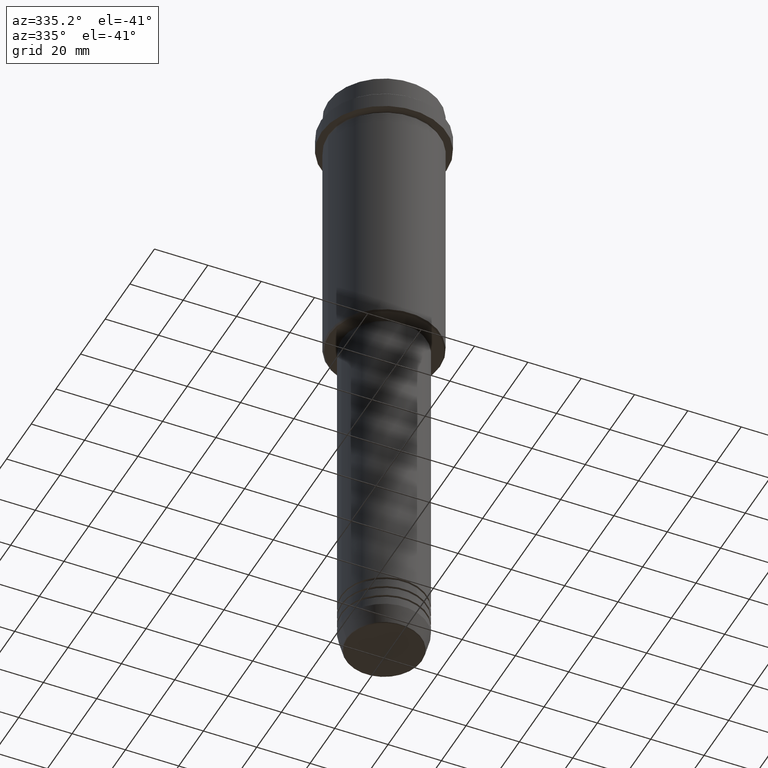
[diagram: clean part render]
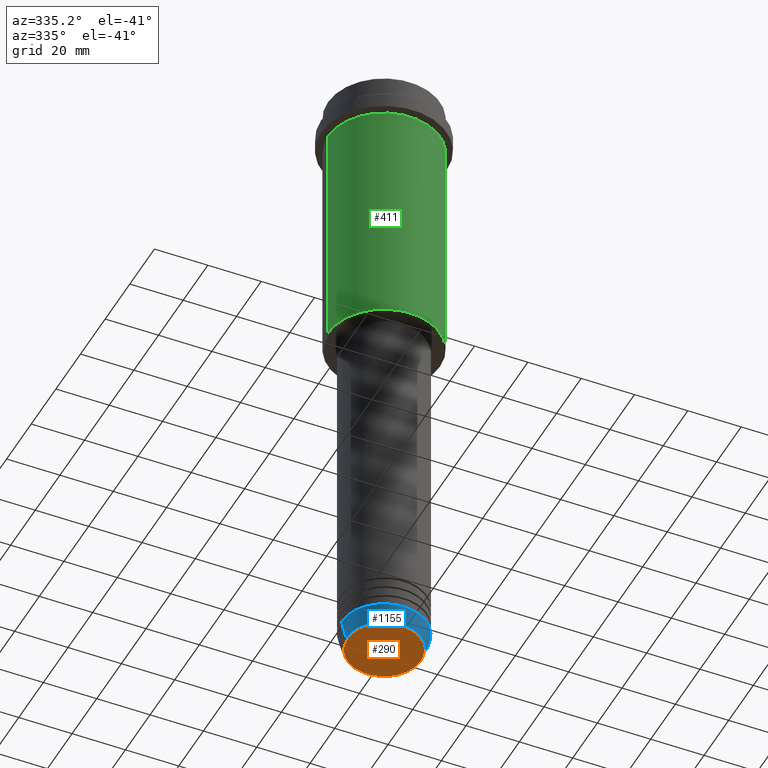
[diagram: same view with three faces highlighted in distinct colors, each labeled with its STEP entity id]
A machine part, auxiliary view with three faces highlighted in distinct colors.
Their STEP definitions:

[orange] entity #290 — the highlighted planar face has unit normal (0, -0, 1).
#95 = CIRCLE ( 'NONE', #1336, 13.74069215899266361 ) ;
#170 = DIRECTION ( 'NONE',  ( 0.000000000000000000, -0.000000000000000000, 1.000000000000000000 ) ) ;
#176 = CARTESIAN_POINT ( 'NONE',  ( 0.000000000000000000, 0.000000000000000000, -240.0000000000000568 ) ) ;
#198 = FACE_OUTER_BOUND ( 'NONE', #885, .T. ) ;
#290 = ADVANCED_FACE ( 'NONE', ( #198 ), #310, .F. ) ;
#296 = AXIS2_PLACEMENT_3D ( 'NONE', #408, #170, #942 ) ;
#310 = PLANE ( 'NONE',  #296 ) ;
#408 = CARTESIAN_POINT ( 'NONE',  ( 0.000000000000000000, 0.000000000000000000, -240.0000000000000568 ) ) ;
#445 = AXIS2_PLACEMENT_3D ( 'NONE', #176, #1138, #1348 ) ;
#510 = CARTESIAN_POINT ( 'NONE',  ( -13.74069215899266361, 1.712322416342416775E-15, -240.0000000000000568 ) ) ;
#599 = ORIENTED_EDGE ( 'NONE', *, *, #1081, .T. ) ;
#636 = CARTESIAN_POINT ( 'NONE',  ( 13.74069215899266361, 0.000000000000000000, -240.0000000000000568 ) ) ;
#684 = ORIENTED_EDGE ( 'NONE', *, *, #1169, .T. ) ;
#707 = VERTEX_POINT ( 'NONE', #510 ) ;
#885 = EDGE_LOOP ( 'NONE', ( #684, #599 ) ) ;
#916 = CARTESIAN_POINT ( 'NONE',  ( 0.000000000000000000, 0.000000000000000000, -240.0000000000000568 ) ) ;
#930 = CIRCLE ( 'NONE', #445, 13.74069215899266361 ) ;
#942 = DIRECTION ( 'NONE',  ( 1.000000000000000000, 0.000000000000000000, 0.000000000000000000 ) ) ;
#988 = DIRECTION ( 'NONE',  ( 1.000000000000000000, 0.000000000000000000, 0.000000000000000000 ) ) ;
#1081 = EDGE_CURVE ( 'NONE', #707, #1255, #930, .T. ) ;
#1138 = DIRECTION ( 'NONE',  ( 0.000000000000000000, 0.000000000000000000, -1.000000000000000000 ) ) ;
#1169 = EDGE_CURVE ( 'NONE', #1255, #707, #95, .T. ) ;
#1255 = VERTEX_POINT ( 'NONE', #636 ) ;
#1336 = AXIS2_PLACEMENT_3D ( 'NONE', #916, #1409, #988 ) ;
#1348 = DIRECTION ( 'NONE',  ( 1.000000000000000000, 0.000000000000000000, 0.000000000000000000 ) ) ;
#1409 = DIRECTION ( 'NONE',  ( 0.000000000000000000, 0.000000000000000000, -1.000000000000000000 ) ) ;

[blue] entity #1155 — the highlighted conical surface has half-angle 15 deg.
#35 = CARTESIAN_POINT ( 'NONE',  ( 0.000000000000000000, 0.000000000000000000, -233.0000000000000284 ) ) ;
#40 = EDGE_CURVE ( 'NONE', #143, #217, #262, .T. ) ;
#60 = DIRECTION ( 'NONE',  ( -0.2588190451025205174, 3.169619151431761243E-17, 0.9659258262890684232 ) ) ;
#96 = AXIS2_PLACEMENT_3D ( 'NONE', #426, #1187, #551 ) ;
#143 = VERTEX_POINT ( 'NONE', #1029 ) ;
#171 = DIRECTION ( 'NONE',  ( -0.000000000000000000, -0.000000000000000000, 1.000000000000000000 ) ) ;
#200 = CARTESIAN_POINT ( 'NONE',  ( -16.00000000000000000, 1.959434878635765131E-15, -233.0000000000000284 ) ) ;
#217 = VERTEX_POINT ( 'NONE', #357 ) ;
#225 = AXIS2_PLACEMENT_3D ( 'NONE', #1393, #957, #419 ) ;
#262 = LINE ( 'NONE', #576, #294 ) ;
#286 = ORIENTED_EDGE ( 'NONE', *, *, #40, .T. ) ;
#294 = VECTOR ( 'NONE', #488, 1000.000000000000114 ) ;
#301 = CIRCLE ( 'NONE', #96, 14.22365507213720548 ) ;
#357 = CARTESIAN_POINT ( 'NONE',  ( 16.00000000000000000, 0.000000000000000000, -233.0000000000000284 ) ) ;
#419 = DIRECTION ( 'NONE',  ( 1.000000000000000000, 0.000000000000000000, 0.000000000000000000 ) ) ;
#426 = CARTESIAN_POINT ( 'NONE',  ( 0.000000000000000000, 0.000000000000000000, -239.6294095225512990 ) ) ;
#436 = CARTESIAN_POINT ( 'NONE',  ( -14.22365507213720548, 1.850665122131324520E-15, -239.6294095225512990 ) ) ;
#484 = DIRECTION ( 'NONE',  ( 1.000000000000000000, 0.000000000000000000, 0.000000000000000000 ) ) ;
#488 = DIRECTION ( 'NONE',  ( 0.2588190451025205174, 0.000000000000000000, 0.9659258262890684232 ) ) ;
#551 = DIRECTION ( 'NONE',  ( 1.000000000000000000, 0.000000000000000000, 0.000000000000000000 ) ) ;
#576 = CARTESIAN_POINT ( 'NONE',  ( 16.00000000000000000, 0.000000000000000000, -233.0000000000000284 ) ) ;
#591 = ORIENTED_EDGE ( 'NONE', *, *, #1253, .T. ) ;
#705 = CARTESIAN_POINT ( 'NONE',  ( -16.00000000000000000, 1.959434878635765131E-15, -233.0000000000000284 ) ) ;
#718 = EDGE_CURVE ( 'NONE', #1183, #1192, #1050, .T. ) ;
#720 = CIRCLE ( 'NONE', #225, 16.00000000000000000 ) ;
#806 = EDGE_LOOP ( 'NONE', ( #858, #591, #286, #1235 ) ) ;
#849 = EDGE_CURVE ( 'NONE', #1192, #217, #720, .T. ) ;
#858 = ORIENTED_EDGE ( 'NONE', *, *, #718, .F. ) ;
#900 = VECTOR ( 'NONE', #60, 1000.000000000000114 ) ;
#957 = DIRECTION ( 'NONE',  ( -0.000000000000000000, -0.000000000000000000, 1.000000000000000000 ) ) ;
#1020 = FACE_OUTER_BOUND ( 'NONE', #806, .T. ) ;
#1029 = CARTESIAN_POINT ( 'NONE',  ( 14.22365507213720548, 0.000000000000000000, -239.6294095225512990 ) ) ;
#1040 = AXIS2_PLACEMENT_3D ( 'NONE', #35, #171, #484 ) ;
#1050 = LINE ( 'NONE', #705, #900 ) ;
#1085 = CONICAL_SURFACE ( 'NONE', #1040, 16.00000000000000000, 0.2617993877991491303 ) ;
#1155 = ADVANCED_FACE ( 'NONE', ( #1020 ), #1085, .T. ) ;
#1183 = VERTEX_POINT ( 'NONE', #436 ) ;
#1187 = DIRECTION ( 'NONE',  ( -0.000000000000000000, -0.000000000000000000, 1.000000000000000000 ) ) ;
#1192 = VERTEX_POINT ( 'NONE', #200 ) ;
#1235 = ORIENTED_EDGE ( 'NONE', *, *, #849, .F. ) ;
#1253 = EDGE_CURVE ( 'NONE', #1183, #143, #301, .T. ) ;
#1393 = CARTESIAN_POINT ( 'NONE',  ( 0.000000000000000000, 0.000000000000000000, -233.0000000000000284 ) ) ;

[green] entity #411 — the highlighted cylindrical surface (partial cylindrical patch) has radius 21 mm, axis along (-0, -0, 1).
#7 = CIRCLE ( 'NONE', #1197, 20.99999999999999645 ) ;
#75 = DIRECTION ( 'NONE',  ( -0.000000000000000000, -0.000000000000000000, 1.000000000000000000 ) ) ;
#127 = ORIENTED_EDGE ( 'NONE', *, *, #839, .T. ) ;
#153 = DIRECTION ( 'NONE',  ( 1.000000000000000000, 0.000000000000000000, 0.000000000000000000 ) ) ;
#174 = CARTESIAN_POINT ( 'NONE',  ( 0.000000000000000000, 0.000000000000000000, 0.000000000000000000 ) ) ;
#370 = VERTEX_POINT ( 'NONE', #954 ) ;
#407 = LINE ( 'NONE', #1390, #826 ) ;
#411 = ADVANCED_FACE ( 'NONE', ( #414 ), #643, .T. ) ;
#414 = FACE_OUTER_BOUND ( 'NONE', #579, .T. ) ;
#417 = ORIENTED_EDGE ( 'NONE', *, *, #711, .F. ) ;
#443 = VERTEX_POINT ( 'NONE', #1086 ) ;
#481 = ORIENTED_EDGE ( 'NONE', *, *, #1331, .F. ) ;
#486 = EDGE_CURVE ( 'NONE', #443, #1209, #407, .T. ) ;
#563 = AXIS2_PLACEMENT_3D ( 'NONE', #1075, #840, #1071 ) ;
#572 = ORIENTED_EDGE ( 'NONE', *, *, #486, .T. ) ;
#579 = EDGE_LOOP ( 'NONE', ( #481, #127, #572, #417 ) ) ;
#613 = VECTOR ( 'NONE', #639, 1000.000000000000000 ) ;
#639 = DIRECTION ( 'NONE',  ( -0.000000000000000000, -0.000000000000000000, 1.000000000000000000 ) ) ;
#643 = CYLINDRICAL_SURFACE ( 'NONE', #1102, 20.99999999999999645 ) ;
#655 = VERTEX_POINT ( 'NONE', #1365 ) ;
#657 = CARTESIAN_POINT ( 'NONE',  ( 20.99999999999999645, 0.000000000000000000, -16.00000000000000355 ) ) ;
#711 = EDGE_CURVE ( 'NONE', #370, #1209, #7, .T. ) ;
#742 = CARTESIAN_POINT ( 'NONE',  ( -20.99999999999999645, 2.571758278209441267E-15, 0.000000000000000000 ) ) ;
#826 = VECTOR ( 'NONE', #75, 1000.000000000000000 ) ;
#839 = EDGE_CURVE ( 'NONE', #655, #443, #1105, .T. ) ;
#840 = DIRECTION ( 'NONE',  ( -0.000000000000000000, -0.000000000000000000, 1.000000000000000000 ) ) ;
#860 = DIRECTION ( 'NONE',  ( -0.000000000000000000, -0.000000000000000000, 1.000000000000000000 ) ) ;
#924 = CARTESIAN_POINT ( 'NONE',  ( 0.000000000000000000, 0.000000000000000000, -16.00000000000000355 ) ) ;
#954 = CARTESIAN_POINT ( 'NONE',  ( -20.99999999999999645, 2.571758278209441267E-15, -16.00000000000000355 ) ) ;
#959 = LINE ( 'NONE', #742, #613 ) ;
#974 = DIRECTION ( 'NONE',  ( 1.000000000000000000, 0.000000000000000000, 0.000000000000000000 ) ) ;
#1071 = DIRECTION ( 'NONE',  ( -1.000000000000000000, 0.000000000000000000, 0.000000000000000000 ) ) ;
#1075 = CARTESIAN_POINT ( 'NONE',  ( 0.000000000000000000, 0.000000000000000000, -104.5000000000000426 ) ) ;
#1086 = CARTESIAN_POINT ( 'NONE',  ( 20.99999999999999645, 0.000000000000000000, -104.5000000000000426 ) ) ;
#1102 = AXIS2_PLACEMENT_3D ( 'NONE', #174, #860, #974 ) ;
#1105 = CIRCLE ( 'NONE', #563, 20.99999999999999645 ) ;
#1144 = DIRECTION ( 'NONE',  ( -0.000000000000000000, -0.000000000000000000, 1.000000000000000000 ) ) ;
#1197 = AXIS2_PLACEMENT_3D ( 'NONE', #924, #1144, #153 ) ;
#1209 = VERTEX_POINT ( 'NONE', #657 ) ;
#1331 = EDGE_CURVE ( 'NONE', #655, #370, #959, .T. ) ;
#1365 = CARTESIAN_POINT ( 'NONE',  ( -20.99999999999999645, 2.571758278209441267E-15, -104.5000000000000426 ) ) ;
#1390 = CARTESIAN_POINT ( 'NONE',  ( 20.99999999999999645, 0.000000000000000000, 0.000000000000000000 ) ) ;